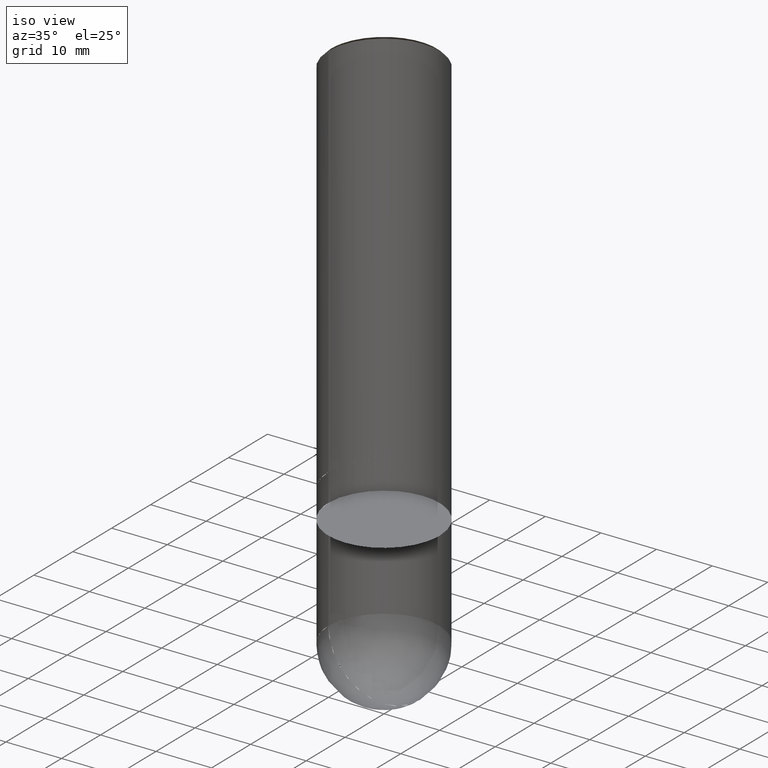
[diagram: clean part render]
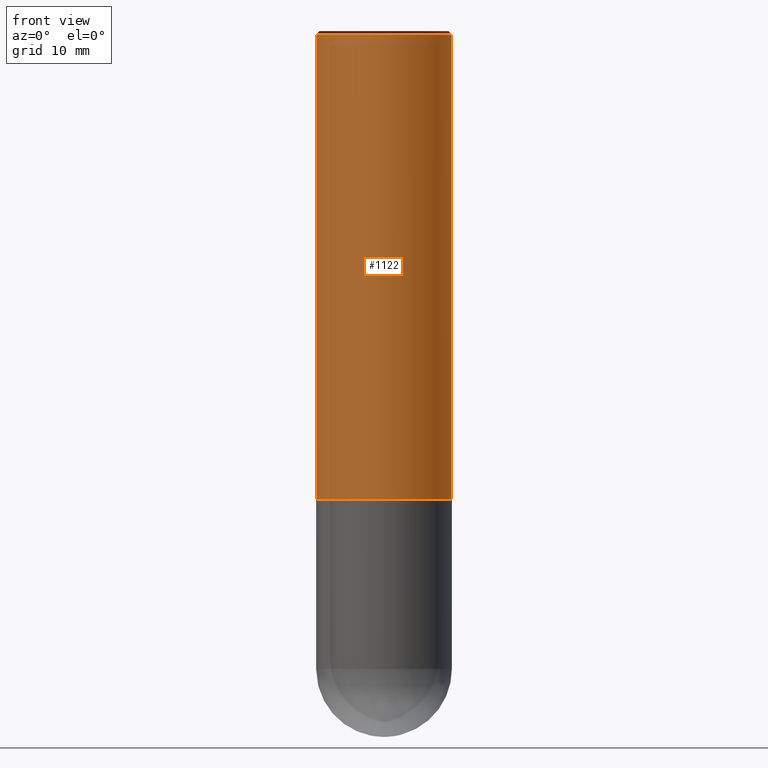
[diagram: tour spotlight — one face highlighted and labeled with its STEP entity id]
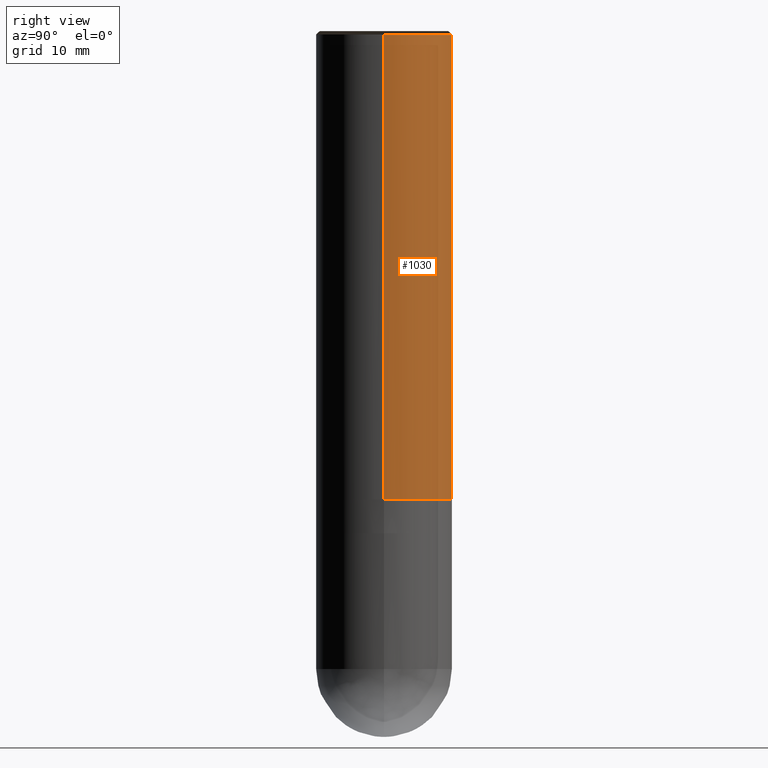
[diagram: tour spotlight — one face highlighted and labeled with its STEP entity id]
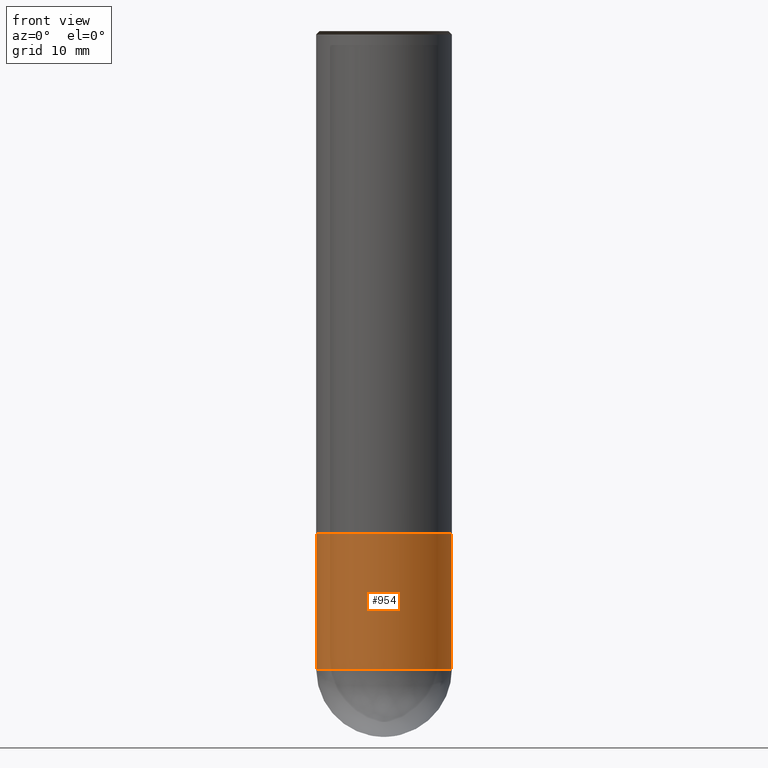
[diagram: tour spotlight — one face highlighted and labeled with its STEP entity id]
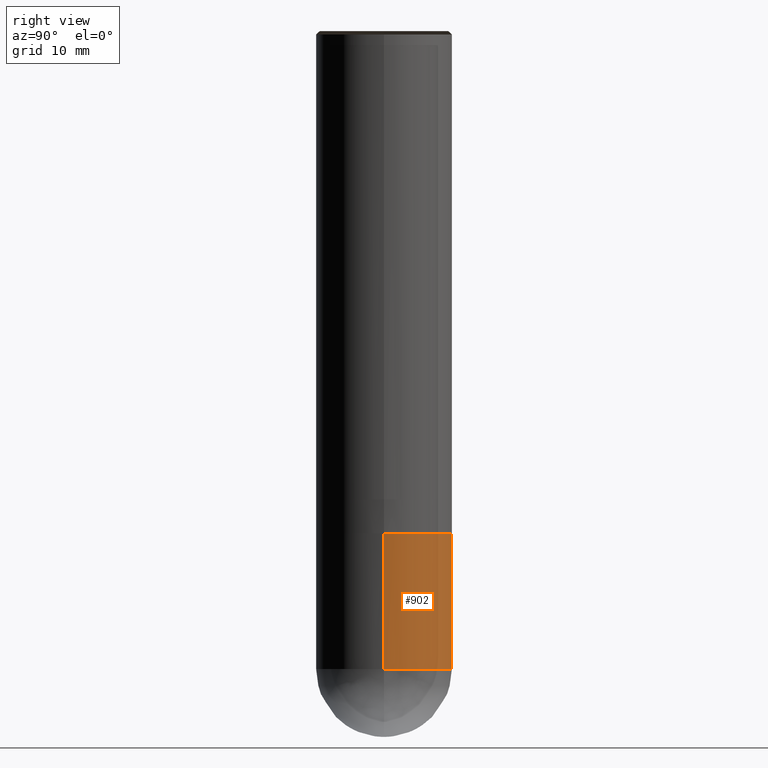
[diagram: tour spotlight — one face highlighted and labeled with its STEP entity id]
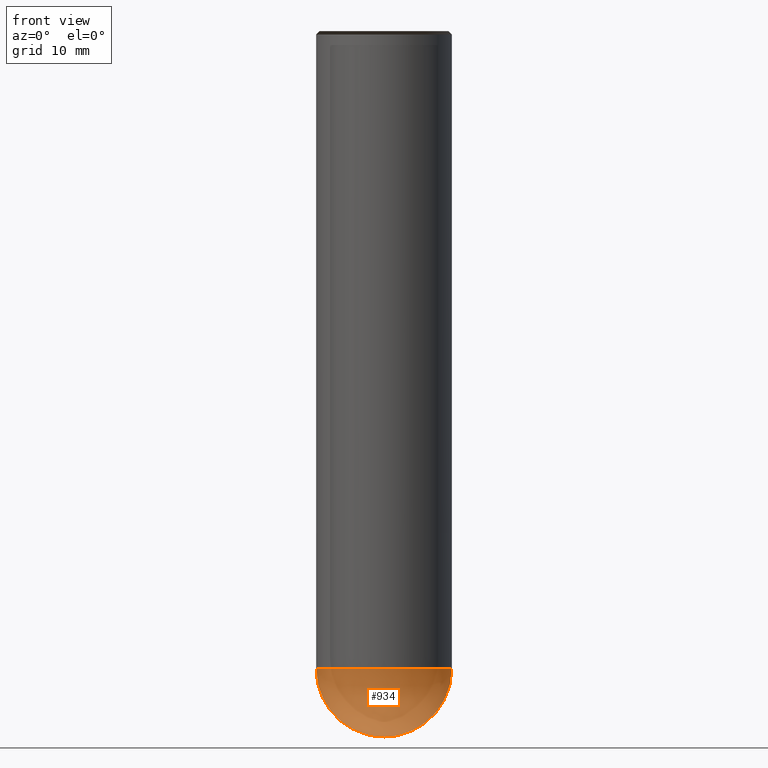
[diagram: tour spotlight — one face highlighted and labeled with its STEP entity id]
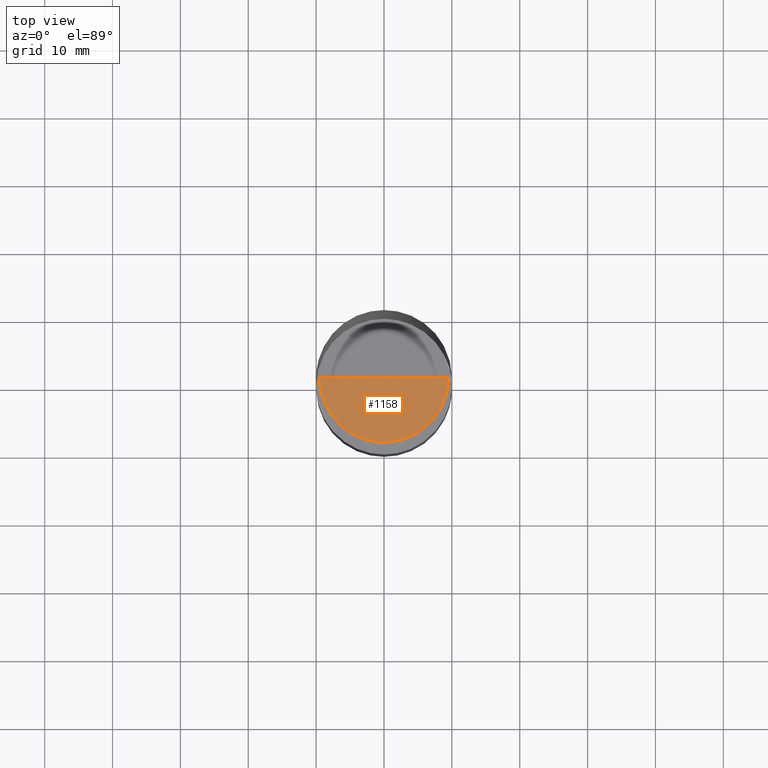
[diagram: tour spotlight — one face highlighted and labeled with its STEP entity id]
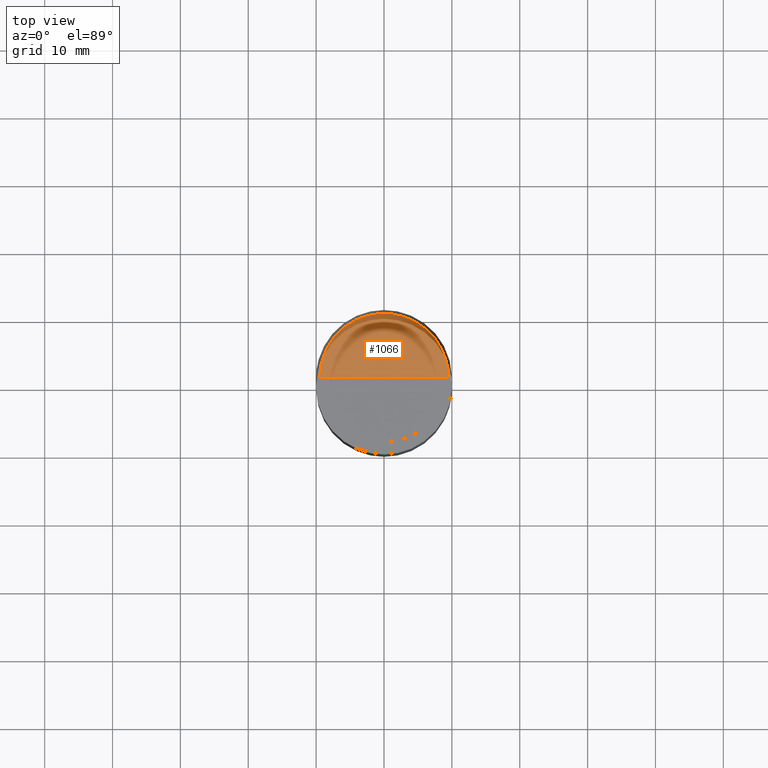
[diagram: tour spotlight — one face highlighted and labeled with its STEP entity id]
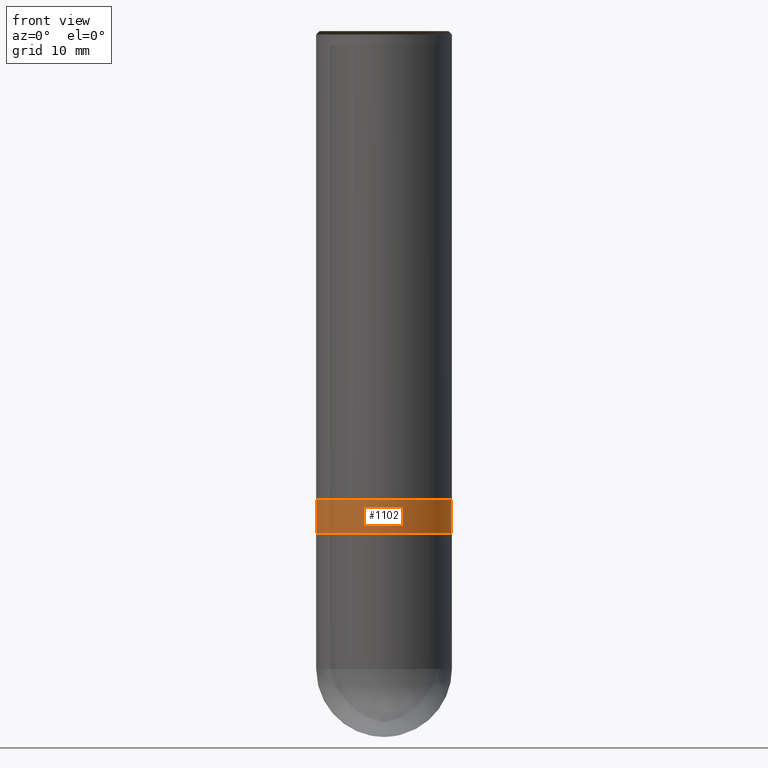
[diagram: tour spotlight — one face highlighted and labeled with its STEP entity id]
A machine part: a face-by-face anatomy tour. The part has 16 B-rep faces; the first image is the clean iso view, then the 8 largest visible faces are spotlighted one at a time (largest first), each with its STEP entity span.

Face 1 — front view, entity #1122. In plain terms, the highlighted face is a freeform B-spline surface patch.
Definition (entity closure, byte-faithful):
#836=CARTESIAN_POINT('',(10.0,0.0,0.0));
#840=CARTESIAN_POINT('',(-10.0,0.0,0.0));
#841=CARTESIAN_POINT('',(10.0,0.0,68.5));
#845=CARTESIAN_POINT('',(-10.0,0.0,68.5));
#852=CARTESIAN_POINT('',(-10.0,-10.0,0.0));
#853=CARTESIAN_POINT('',(0.0,-10.0,0.0));
#854=CARTESIAN_POINT('',(10.0,-10.0,0.0));
#855=CARTESIAN_POINT('',(-10.0,-10.0,68.5));
#856=CARTESIAN_POINT('',(0.0,-10.0,68.5));
#857=CARTESIAN_POINT('',(10.0,-10.0,68.5));
#1103=(
BOUNDED_SURFACE()
B_SPLINE_SURFACE(1,2,(
(#840,#852,#853,#854,#836),
(#845,#855,#856,#857,#841)
), .UNSPECIFIED.,.F.,.F.,.F.)
B_SPLINE_SURFACE_WITH_KNOTS((2,2),(3,2,3),(
0.0,1.0),(
0.0,0.5,1.0), .UNSPECIFIED.)
GEOMETRIC_REPRESENTATION_ITEM()
RATIONAL_B_SPLINE_SURFACE(((1.0,0.707106781187,1.0,0.707106781187,1.0),
(1.0,0.707106781187,1.0,0.707106781187,1.0)
))
REPRESENTATION_ITEM('')
SURFACE()
);
#1104=(
BOUNDED_CURVE()
B_SPLINE_CURVE(2,(#836,#854,#853,#852,#840),.UNSPECIFIED.,.F.,.F.)
B_SPLINE_CURVE_WITH_KNOTS((3,2,3),
(0.0,0.5,1.0),.UNSPECIFIED.)
CURVE()
GEOMETRIC_REPRESENTATION_ITEM()
RATIONAL_B_SPLINE_CURVE((1.0,0.707106781187,1.0,0.707106781187,1.0))
REPRESENTATION_ITEM('')
);
#1105=(
BOUNDED_CURVE()
B_SPLINE_CURVE(1,(#840,#845),.UNSPECIFIED.,.F.,.F.)
B_SPLINE_CURVE_WITH_KNOTS((2,2),
(0.0,1.0),.UNSPECIFIED.)
CURVE()
GEOMETRIC_REPRESENTATION_ITEM()
RATIONAL_B_SPLINE_CURVE((1.0,1.0))
REPRESENTATION_ITEM('')
);
#1106=(
BOUNDED_CURVE()
B_SPLINE_CURVE(2,(#845,#855,#856,#857,#841),.UNSPECIFIED.,.F.,.F.)
B_SPLINE_CURVE_WITH_KNOTS((3,2,3),
(0.0,0.5,1.0),.UNSPECIFIED.)
CURVE()
GEOMETRIC_REPRESENTATION_ITEM()
RATIONAL_B_SPLINE_CURVE((1.0,0.707106781187,1.0,0.707106781187,1.0))
REPRESENTATION_ITEM('')
);
#1107=(
BOUNDED_CURVE()
B_SPLINE_CURVE(1,(#841,#836),.UNSPECIFIED.,.F.,.F.)
B_SPLINE_CURVE_WITH_KNOTS((2,2),
(0.0,1.0),.UNSPECIFIED.)
CURVE()
GEOMETRIC_REPRESENTATION_ITEM()
RATIONAL_B_SPLINE_CURVE((1.0,1.0))
REPRESENTATION_ITEM('')
);
#1108=VERTEX_POINT('',#836);
#1109=VERTEX_POINT('',#840);
#1110=VERTEX_POINT('',#841);
#1111=VERTEX_POINT('',#845);
#1112=EDGE_CURVE('',#1108,#1109,#1104,.T.);
#1113=EDGE_CURVE('',#1109,#1111,#1105,.T.);
#1114=EDGE_CURVE('',#1111,#1110,#1106,.T.);
#1115=EDGE_CURVE('',#1110,#1108,#1107,.T.);
#1116=ORIENTED_EDGE('',*,*,#1112,.T.);
#1117=ORIENTED_EDGE('',*,*,#1113,.T.);
#1118=ORIENTED_EDGE('',*,*,#1114,.T.);
#1119=ORIENTED_EDGE('',*,*,#1115,.T.);
#1120=EDGE_LOOP('',(#1116,#1117,#1118,#1119));
#1121=FACE_OUTER_BOUND('',#1120,.T.);
#1122=ADVANCED_FACE('',(#1121),#1103,.T.);

Face 2 — right view, entity #1030. In plain terms, the highlighted face is a freeform B-spline surface patch.
Definition (entity closure, byte-faithful):
#836=CARTESIAN_POINT('',(10.0,0.0,0.0));
#837=CARTESIAN_POINT('',(10.0,10.0,0.0));
#838=CARTESIAN_POINT('',(0.0,10.0,0.0));
#839=CARTESIAN_POINT('',(-10.0,10.0,0.0));
#840=CARTESIAN_POINT('',(-10.0,0.0,0.0));
#841=CARTESIAN_POINT('',(10.0,0.0,68.5));
#842=CARTESIAN_POINT('',(10.0,10.0,68.5));
#843=CARTESIAN_POINT('',(0.0,10.0,68.5));
#844=CARTESIAN_POINT('',(-10.0,10.0,68.5));
#845=CARTESIAN_POINT('',(-10.0,0.0,68.5));
#1011=(
BOUNDED_SURFACE()
B_SPLINE_SURFACE(1,2,(
(#836,#837,#838,#839,#840),
(#841,#842,#843,#844,#845)
), .UNSPECIFIED.,.F.,.F.,.F.)
B_SPLINE_SURFACE_WITH_KNOTS((2,2),(3,2,3),(
0.0,1.0),(
0.0,0.5,1.0), .UNSPECIFIED.)
GEOMETRIC_REPRESENTATION_ITEM()
RATIONAL_B_SPLINE_SURFACE(((1.0,0.707106781187,1.0,0.707106781187,1.0),
(1.0,0.707106781187,1.0,0.707106781187,1.0)
))
REPRESENTATION_ITEM('')
SURFACE()
);
#1012=(
BOUNDED_CURVE()
B_SPLINE_CURVE(2,(#840,#839,#838,#837,#836),.UNSPECIFIED.,.F.,.F.)
B_SPLINE_CURVE_WITH_KNOTS((3,2,3),
(0.0,0.5,1.0),.UNSPECIFIED.)
CURVE()
GEOMETRIC_REPRESENTATION_ITEM()
RATIONAL_B_SPLINE_CURVE((1.0,0.707106781187,1.0,0.707106781187,1.0))
REPRESENTATION_ITEM('')
);
#1013=(
BOUNDED_CURVE()
B_SPLINE_CURVE(1,(#836,#841),.UNSPECIFIED.,.F.,.F.)
B_SPLINE_CURVE_WITH_KNOTS((2,2),
(0.0,1.0),.UNSPECIFIED.)
CURVE()
GEOMETRIC_REPRESENTATION_ITEM()
RATIONAL_B_SPLINE_CURVE((1.0,1.0))
REPRESENTATION_ITEM('')
);
#1014=(
BOUNDED_CURVE()
B_SPLINE_CURVE(2,(#841,#842,#843,#844,#845),.UNSPECIFIED.,.F.,.F.)
B_SPLINE_CURVE_WITH_KNOTS((3,2,3),
(0.0,0.5,1.0),.UNSPECIFIED.)
CURVE()
GEOMETRIC_REPRESENTATION_ITEM()
RATIONAL_B_SPLINE_CURVE((1.0,0.707106781187,1.0,0.707106781187,1.0))
REPRESENTATION_ITEM('')
);
#1015=(
BOUNDED_CURVE()
B_SPLINE_CURVE(1,(#845,#840),.UNSPECIFIED.,.F.,.F.)
B_SPLINE_CURVE_WITH_KNOTS((2,2),
(0.0,1.0),.UNSPECIFIED.)
CURVE()
GEOMETRIC_REPRESENTATION_ITEM()
RATIONAL_B_SPLINE_CURVE((1.0,1.0))
REPRESENTATION_ITEM('')
);
#1016=VERTEX_POINT('',#836);
#1017=VERTEX_POINT('',#840);
#1018=VERTEX_POINT('',#841);
#1019=VERTEX_POINT('',#845);
#1020=EDGE_CURVE('',#1017,#1016,#1012,.T.);
#1021=EDGE_CURVE('',#1016,#1018,#1013,.T.);
#1022=EDGE_CURVE('',#1018,#1019,#1014,.T.);
#1023=EDGE_CURVE('',#1019,#1017,#1015,.T.);
#1024=ORIENTED_EDGE('',*,*,#1020,.T.);
#1025=ORIENTED_EDGE('',*,*,#1021,.T.);
#1026=ORIENTED_EDGE('',*,*,#1022,.T.);
#1027=ORIENTED_EDGE('',*,*,#1023,.T.);
#1028=EDGE_LOOP('',(#1024,#1025,#1026,#1027));
#1029=FACE_OUTER_BOUND('',#1028,.T.);
#1030=ADVANCED_FACE('',(#1029),#1011,.T.);

Face 3 — front view, entity #954. In plain terms, the highlighted face is a freeform B-spline surface patch.
Definition (entity closure, byte-faithful):
#816=CARTESIAN_POINT('',(10.0,0.0,-25.0));
#820=CARTESIAN_POINT('',(-10.0,0.0,-25.0));
#821=CARTESIAN_POINT('',(10.0,0.0,-5.0));
#825=CARTESIAN_POINT('',(-10.0,0.0,-5.0));
#830=CARTESIAN_POINT('',(-10.0,-10.0,-25.0));
#831=CARTESIAN_POINT('',(0.0,-10.0,-25.0));
#832=CARTESIAN_POINT('',(10.0,-10.0,-25.0));
#833=CARTESIAN_POINT('',(-10.0,-10.0,-5.0));
#834=CARTESIAN_POINT('',(0.0,-10.0,-5.0));
#835=CARTESIAN_POINT('',(10.0,-10.0,-5.0));
#935=(
BOUNDED_SURFACE()
B_SPLINE_SURFACE(1,2,(
(#820,#830,#831,#832,#816),
(#825,#833,#834,#835,#821)
), .UNSPECIFIED.,.F.,.F.,.F.)
B_SPLINE_SURFACE_WITH_KNOTS((2,2),(3,2,3),(
0.0,1.0),(
0.0,0.5,1.0), .UNSPECIFIED.)
GEOMETRIC_REPRESENTATION_ITEM()
RATIONAL_B_SPLINE_SURFACE(((1.0,0.707106781187,1.0,0.707106781187,1.0),
(1.0,0.707106781187,1.0,0.707106781187,1.0)
))
REPRESENTATION_ITEM('')
SURFACE()
);
#936=(
BOUNDED_CURVE()
B_SPLINE_CURVE(2,(#816,#832,#831,#830,#820),.UNSPECIFIED.,.F.,.F.)
B_SPLINE_CURVE_WITH_KNOTS((3,2,3),
(0.0,0.5,1.0),.UNSPECIFIED.)
CURVE()
GEOMETRIC_REPRESENTATION_ITEM()
RATIONAL_B_SPLINE_CURVE((1.0,0.707106781187,1.0,0.707106781187,1.0))
REPRESENTATION_ITEM('')
);
#937=(
BOUNDED_CURVE()
B_SPLINE_CURVE(1,(#820,#825),.UNSPECIFIED.,.F.,.F.)
B_SPLINE_CURVE_WITH_KNOTS((2,2),
(0.0,1.0),.UNSPECIFIED.)
CURVE()
GEOMETRIC_REPRESENTATION_ITEM()
RATIONAL_B_SPLINE_CURVE((1.0,1.0))
REPRESENTATION_ITEM('')
);
#938=(
BOUNDED_CURVE()
B_SPLINE_CURVE(2,(#825,#833,#834,#835,#821),.UNSPECIFIED.,.F.,.F.)
B_SPLINE_CURVE_WITH_KNOTS((3,2,3),
(0.0,0.5,1.0),.UNSPECIFIED.)
CURVE()
GEOMETRIC_REPRESENTATION_ITEM()
RATIONAL_B_SPLINE_CURVE((1.0,0.707106781187,1.0,0.707106781187,1.0))
REPRESENTATION_ITEM('')
);
#939=(
BOUNDED_CURVE()
B_SPLINE_CURVE(1,(#821,#816),.UNSPECIFIED.,.F.,.F.)
B_SPLINE_CURVE_WITH_KNOTS((2,2),
(0.0,1.0),.UNSPECIFIED.)
CURVE()
GEOMETRIC_REPRESENTATION_ITEM()
RATIONAL_B_SPLINE_CURVE((1.0,1.0))
REPRESENTATION_ITEM('')
);
#940=VERTEX_POINT('',#816);
#941=VERTEX_POINT('',#820);
#942=VERTEX_POINT('',#821);
#943=VERTEX_POINT('',#825);
#944=EDGE_CURVE('',#940,#941,#936,.T.);
#945=EDGE_CURVE('',#941,#943,#937,.T.);
#946=EDGE_CURVE('',#943,#942,#938,.T.);
#947=EDGE_CURVE('',#942,#940,#939,.T.);
#948=ORIENTED_EDGE('',*,*,#944,.T.);
#949=ORIENTED_EDGE('',*,*,#945,.T.);
#950=ORIENTED_EDGE('',*,*,#946,.T.);
#951=ORIENTED_EDGE('',*,*,#947,.T.);
#952=EDGE_LOOP('',(#948,#949,#950,#951));
#953=FACE_OUTER_BOUND('',#952,.T.);
#954=ADVANCED_FACE('',(#953),#935,.T.);

Face 4 — right view, entity #902. In plain terms, the highlighted face is a freeform B-spline surface patch.
Definition (entity closure, byte-faithful):
#816=CARTESIAN_POINT('',(10.0,0.0,-25.0));
#817=CARTESIAN_POINT('',(10.0,10.0,-25.0));
#818=CARTESIAN_POINT('',(0.0,10.0,-25.0));
#819=CARTESIAN_POINT('',(-10.0,10.0,-25.0));
#820=CARTESIAN_POINT('',(-10.0,0.0,-25.0));
#821=CARTESIAN_POINT('',(10.0,0.0,-5.0));
#822=CARTESIAN_POINT('',(10.0,10.0,-5.0));
#823=CARTESIAN_POINT('',(0.0,10.0,-5.0));
#824=CARTESIAN_POINT('',(-10.0,10.0,-5.0));
#825=CARTESIAN_POINT('',(-10.0,0.0,-5.0));
#883=(
BOUNDED_SURFACE()
B_SPLINE_SURFACE(1,2,(
(#816,#817,#818,#819,#820),
(#821,#822,#823,#824,#825)
), .UNSPECIFIED.,.F.,.F.,.F.)
B_SPLINE_SURFACE_WITH_KNOTS((2,2),(3,2,3),(
0.0,1.0),(
0.0,0.5,1.0), .UNSPECIFIED.)
GEOMETRIC_REPRESENTATION_ITEM()
RATIONAL_B_SPLINE_SURFACE(((1.0,0.707106781187,1.0,0.707106781187,1.0),
(1.0,0.707106781187,1.0,0.707106781187,1.0)
))
REPRESENTATION_ITEM('')
SURFACE()
);
#884=(
BOUNDED_CURVE()
B_SPLINE_CURVE(2,(#820,#819,#818,#817,#816),.UNSPECIFIED.,.F.,.F.)
B_SPLINE_CURVE_WITH_KNOTS((3,2,3),
(0.0,0.5,1.0),.UNSPECIFIED.)
CURVE()
GEOMETRIC_REPRESENTATION_ITEM()
RATIONAL_B_SPLINE_CURVE((1.0,0.707106781187,1.0,0.707106781187,1.0))
REPRESENTATION_ITEM('')
);
#885=(
BOUNDED_CURVE()
B_SPLINE_CURVE(1,(#816,#821),.UNSPECIFIED.,.F.,.F.)
B_SPLINE_CURVE_WITH_KNOTS((2,2),
(0.0,1.0),.UNSPECIFIED.)
CURVE()
GEOMETRIC_REPRESENTATION_ITEM()
RATIONAL_B_SPLINE_CURVE((1.0,1.0))
REPRESENTATION_ITEM('')
);
#886=(
BOUNDED_CURVE()
B_SPLINE_CURVE(2,(#821,#822,#823,#824,#825),.UNSPECIFIED.,.F.,.F.)
B_SPLINE_CURVE_WITH_KNOTS((3,2,3),
(0.0,0.5,1.0),.UNSPECIFIED.)
CURVE()
GEOMETRIC_REPRESENTATION_ITEM()
RATIONAL_B_SPLINE_CURVE((1.0,0.707106781187,1.0,0.707106781187,1.0))
REPRESENTATION_ITEM('')
);
#887=(
BOUNDED_CURVE()
B_SPLINE_CURVE(1,(#825,#820),.UNSPECIFIED.,.F.,.F.)
B_SPLINE_CURVE_WITH_KNOTS((2,2),
(0.0,1.0),.UNSPECIFIED.)
CURVE()
GEOMETRIC_REPRESENTATION_ITEM()
RATIONAL_B_SPLINE_CURVE((1.0,1.0))
REPRESENTATION_ITEM('')
);
#888=VERTEX_POINT('',#816);
#889=VERTEX_POINT('',#820);
#890=VERTEX_POINT('',#821);
#891=VERTEX_POINT('',#825);
#892=EDGE_CURVE('',#889,#888,#884,.T.);
#893=EDGE_CURVE('',#888,#890,#885,.T.);
#894=EDGE_CURVE('',#890,#891,#886,.T.);
#895=EDGE_CURVE('',#891,#889,#887,.T.);
#896=ORIENTED_EDGE('',*,*,#892,.T.);
#897=ORIENTED_EDGE('',*,*,#893,.T.);
#898=ORIENTED_EDGE('',*,*,#894,.T.);
#899=ORIENTED_EDGE('',*,*,#895,.T.);
#900=EDGE_LOOP('',(#896,#897,#898,#899));
#901=FACE_OUTER_BOUND('',#900,.T.);
#902=ADVANCED_FACE('',(#901),#883,.T.);

Face 5 — front view, entity #934. In plain terms, the highlighted face is a freeform B-spline surface patch.
Definition (entity closure, byte-faithful):
#810=CARTESIAN_POINT('',(0.0,0.0,-35.0));
#811=CARTESIAN_POINT('',(10.0,0.0,-35.0));
#815=CARTESIAN_POINT('',(-10.0,0.0,-35.0));
#816=CARTESIAN_POINT('',(10.0,0.0,-25.0));
#820=CARTESIAN_POINT('',(-10.0,0.0,-25.0));
#827=CARTESIAN_POINT('',(-10.0,-10.0,-35.0));
#828=CARTESIAN_POINT('',(0.0,-10.0,-35.0));
#829=CARTESIAN_POINT('',(10.0,-10.0,-35.0));
#830=CARTESIAN_POINT('',(-10.0,-10.0,-25.0));
#831=CARTESIAN_POINT('',(0.0,-10.0,-25.0));
#832=CARTESIAN_POINT('',(10.0,-10.0,-25.0));
#919=(
BOUNDED_SURFACE()
B_SPLINE_SURFACE(2,2,(
(#810,#810,#810,#810,#810),
(#815,#827,#828,#829,#811),
(#820,#830,#831,#832,#816)
), .UNSPECIFIED.,.F.,.F.,.F.)
B_SPLINE_SURFACE_WITH_KNOTS((3,3),(3,2,3),(
0.0,1.0),(
0.0,0.5,1.0), .UNSPECIFIED.)
GEOMETRIC_REPRESENTATION_ITEM()
RATIONAL_B_SPLINE_SURFACE(((1.0,0.707106781187,1.0,0.707106781187,1.0),
(0.707106781187,0.5,0.707106781187,0.5,0.707106781187),
(1.0,0.707106781187,1.0,0.707106781187,1.0)
))
REPRESENTATION_ITEM('')
SURFACE()
);
#920=(
BOUNDED_CURVE()
B_SPLINE_CURVE(2,(#816,#811,#810),.UNSPECIFIED.,.F.,.F.)
B_SPLINE_CURVE_WITH_KNOTS((3,3),
(0.0,1.0),.UNSPECIFIED.)
CURVE()
GEOMETRIC_REPRESENTATION_ITEM()
RATIONAL_B_SPLINE_CURVE((1.0,0.707106781187,1.0))
REPRESENTATION_ITEM('')
);
#921=(
BOUNDED_CURVE()
B_SPLINE_CURVE(2,(#810,#815,#820),.UNSPECIFIED.,.F.,.F.)
B_SPLINE_CURVE_WITH_KNOTS((3,3),
(0.0,1.0),.UNSPECIFIED.)
CURVE()
GEOMETRIC_REPRESENTATION_ITEM()
RATIONAL_B_SPLINE_CURVE((1.0,0.707106781187,1.0))
REPRESENTATION_ITEM('')
);
#922=(
BOUNDED_CURVE()
B_SPLINE_CURVE(2,(#820,#830,#831,#832,#816),.UNSPECIFIED.,.F.,.F.)
B_SPLINE_CURVE_WITH_KNOTS((3,2,3),
(0.0,0.5,1.0),.UNSPECIFIED.)
CURVE()
GEOMETRIC_REPRESENTATION_ITEM()
RATIONAL_B_SPLINE_CURVE((1.0,0.707106781187,1.0,0.707106781187,1.0))
REPRESENTATION_ITEM('')
);
#923=VERTEX_POINT('',#810);
#924=VERTEX_POINT('',#816);
#925=VERTEX_POINT('',#820);
#926=EDGE_CURVE('',#924,#923,#920,.T.);
#927=EDGE_CURVE('',#923,#925,#921,.T.);
#928=EDGE_CURVE('',#925,#924,#922,.T.);
#929=ORIENTED_EDGE('',*,*,#926,.T.);
#930=ORIENTED_EDGE('',*,*,#927,.T.);
#931=ORIENTED_EDGE('',*,*,#928,.T.);
#932=EDGE_LOOP('',(#929,#930,#931));
#933=FACE_OUTER_BOUND('',#932,.T.);
#934=ADVANCED_FACE('',(#933),#919,.T.);

Face 6 — top view, entity #1158. In plain terms, the highlighted face is a freeform B-spline surface patch.
Definition (entity closure, byte-faithful):
#846=CARTESIAN_POINT('',(9.5,0.0,69.0));
#850=CARTESIAN_POINT('',(-9.5,0.0,69.0));
#851=CARTESIAN_POINT('',(0.0,0.0,69.0));
#858=CARTESIAN_POINT('',(-9.5,-9.5,69.0));
#859=CARTESIAN_POINT('',(0.0,-9.5,69.0));
#860=CARTESIAN_POINT('',(9.5,-9.5,69.0));
#1143=(
BOUNDED_SURFACE()
B_SPLINE_SURFACE(1,2,(
(#850,#858,#859,#860,#846),
(#851,#851,#851,#851,#851)
), .UNSPECIFIED.,.F.,.F.,.F.)
B_SPLINE_SURFACE_WITH_KNOTS((2,2),(3,2,3),(
0.0,1.0),(
0.0,0.5,1.0), .UNSPECIFIED.)
GEOMETRIC_REPRESENTATION_ITEM()
RATIONAL_B_SPLINE_SURFACE(((1.0,0.707106781187,1.0,0.707106781187,1.0),
(1.0,0.707106781187,1.0,0.707106781187,1.0)
))
REPRESENTATION_ITEM('')
SURFACE()
);
#1144=(
BOUNDED_CURVE()
B_SPLINE_CURVE(2,(#846,#860,#859,#858,#850),.UNSPECIFIED.,.F.,.F.)
B_SPLINE_CURVE_WITH_KNOTS((3,2,3),
(0.0,0.5,1.0),.UNSPECIFIED.)
CURVE()
GEOMETRIC_REPRESENTATION_ITEM()
RATIONAL_B_SPLINE_CURVE((1.0,0.707106781187,1.0,0.707106781187,1.0))
REPRESENTATION_ITEM('')
);
#1145=(
BOUNDED_CURVE()
B_SPLINE_CURVE(1,(#850,#851),.UNSPECIFIED.,.F.,.F.)
B_SPLINE_CURVE_WITH_KNOTS((2,2),
(0.0,1.0),.UNSPECIFIED.)
CURVE()
GEOMETRIC_REPRESENTATION_ITEM()
RATIONAL_B_SPLINE_CURVE((1.0,1.0))
REPRESENTATION_ITEM('')
);
#1146=(
BOUNDED_CURVE()
B_SPLINE_CURVE(1,(#851,#846),.UNSPECIFIED.,.F.,.F.)
B_SPLINE_CURVE_WITH_KNOTS((2,2),
(0.0,1.0),.UNSPECIFIED.)
CURVE()
GEOMETRIC_REPRESENTATION_ITEM()
RATIONAL_B_SPLINE_CURVE((1.0,1.0))
REPRESENTATION_ITEM('')
);
#1147=VERTEX_POINT('',#846);
#1148=VERTEX_POINT('',#850);
#1149=VERTEX_POINT('',#851);
#1150=EDGE_CURVE('',#1147,#1148,#1144,.T.);
#1151=EDGE_CURVE('',#1148,#1149,#1145,.T.);
#1152=EDGE_CURVE('',#1149,#1147,#1146,.T.);
#1153=ORIENTED_EDGE('',*,*,#1150,.T.);
#1154=ORIENTED_EDGE('',*,*,#1151,.T.);
#1155=ORIENTED_EDGE('',*,*,#1152,.T.);
#1156=EDGE_LOOP('',(#1153,#1154,#1155));
#1157=FACE_OUTER_BOUND('',#1156,.T.);
#1158=ADVANCED_FACE('',(#1157),#1143,.T.);

Face 7 — top view, entity #1066. In plain terms, the highlighted face is a freeform B-spline surface patch.
Definition (entity closure, byte-faithful):
#846=CARTESIAN_POINT('',(9.5,0.0,69.0));
#847=CARTESIAN_POINT('',(9.5,9.5,69.0));
#848=CARTESIAN_POINT('',(0.0,9.5,69.0));
#849=CARTESIAN_POINT('',(-9.5,9.5,69.0));
#850=CARTESIAN_POINT('',(-9.5,0.0,69.0));
#851=CARTESIAN_POINT('',(0.0,0.0,69.0));
#1051=(
BOUNDED_SURFACE()
B_SPLINE_SURFACE(1,2,(
(#846,#847,#848,#849,#850),
(#851,#851,#851,#851,#851)
), .UNSPECIFIED.,.F.,.F.,.F.)
B_SPLINE_SURFACE_WITH_KNOTS((2,2),(3,2,3),(
0.0,1.0),(
0.0,0.5,1.0), .UNSPECIFIED.)
GEOMETRIC_REPRESENTATION_ITEM()
RATIONAL_B_SPLINE_SURFACE(((1.0,0.707106781187,1.0,0.707106781187,1.0),
(1.0,0.707106781187,1.0,0.707106781187,1.0)
))
REPRESENTATION_ITEM('')
SURFACE()
);
#1052=(
BOUNDED_CURVE()
B_SPLINE_CURVE(2,(#850,#849,#848,#847,#846),.UNSPECIFIED.,.F.,.F.)
B_SPLINE_CURVE_WITH_KNOTS((3,2,3),
(0.0,0.5,1.0),.UNSPECIFIED.)
CURVE()
GEOMETRIC_REPRESENTATION_ITEM()
RATIONAL_B_SPLINE_CURVE((1.0,0.707106781187,1.0,0.707106781187,1.0))
REPRESENTATION_ITEM('')
);
#1053=(
BOUNDED_CURVE()
B_SPLINE_CURVE(1,(#846,#851),.UNSPECIFIED.,.F.,.F.)
B_SPLINE_CURVE_WITH_KNOTS((2,2),
(0.0,1.0),.UNSPECIFIED.)
CURVE()
GEOMETRIC_REPRESENTATION_ITEM()
RATIONAL_B_SPLINE_CURVE((1.0,1.0))
REPRESENTATION_ITEM('')
);
#1054=(
BOUNDED_CURVE()
B_SPLINE_CURVE(1,(#851,#850),.UNSPECIFIED.,.F.,.F.)
B_SPLINE_CURVE_WITH_KNOTS((2,2),
(0.0,1.0),.UNSPECIFIED.)
CURVE()
GEOMETRIC_REPRESENTATION_ITEM()
RATIONAL_B_SPLINE_CURVE((1.0,1.0))
REPRESENTATION_ITEM('')
);
#1055=VERTEX_POINT('',#846);
#1056=VERTEX_POINT('',#850);
#1057=VERTEX_POINT('',#851);
#1058=EDGE_CURVE('',#1056,#1055,#1052,.T.);
#1059=EDGE_CURVE('',#1055,#1057,#1053,.T.);
#1060=EDGE_CURVE('',#1057,#1056,#1054,.T.);
#1061=ORIENTED_EDGE('',*,*,#1058,.T.);
#1062=ORIENTED_EDGE('',*,*,#1059,.T.);
#1063=ORIENTED_EDGE('',*,*,#1060,.T.);
#1064=EDGE_LOOP('',(#1061,#1062,#1063));
#1065=FACE_OUTER_BOUND('',#1064,.T.);
#1066=ADVANCED_FACE('',(#1065),#1051,.T.);

Face 8 — front view, entity #1102. In plain terms, the highlighted face is a freeform B-spline surface patch.
Definition (entity closure, byte-faithful):
#821=CARTESIAN_POINT('',(10.0,0.0,-5.0));
#825=CARTESIAN_POINT('',(-10.0,0.0,-5.0));
#833=CARTESIAN_POINT('',(-10.0,-10.0,-5.0));
#834=CARTESIAN_POINT('',(0.0,-10.0,-5.0));
#835=CARTESIAN_POINT('',(10.0,-10.0,-5.0));
#836=CARTESIAN_POINT('',(10.0,0.0,0.0));
#840=CARTESIAN_POINT('',(-10.0,0.0,0.0));
#852=CARTESIAN_POINT('',(-10.0,-10.0,0.0));
#853=CARTESIAN_POINT('',(0.0,-10.0,0.0));
#854=CARTESIAN_POINT('',(10.0,-10.0,0.0));
#1083=(
BOUNDED_SURFACE()
B_SPLINE_SURFACE(1,2,(
(#825,#833,#834,#835,#821),
(#840,#852,#853,#854,#836)
), .UNSPECIFIED.,.F.,.F.,.F.)
B_SPLINE_SURFACE_WITH_KNOTS((2,2),(3,2,3),(
0.0,1.0),(
0.0,0.5,1.0), .UNSPECIFIED.)
GEOMETRIC_REPRESENTATION_ITEM()
RATIONAL_B_SPLINE_SURFACE(((1.0,0.707106781187,1.0,0.707106781187,1.0),
(1.0,0.707106781187,1.0,0.707106781187,1.0)
))
REPRESENTATION_ITEM('')
SURFACE()
);
#1084=(
BOUNDED_CURVE()
B_SPLINE_CURVE(2,(#821,#835,#834,#833,#825),.UNSPECIFIED.,.F.,.F.)
B_SPLINE_CURVE_WITH_KNOTS((3,2,3),
(0.0,0.5,1.0),.UNSPECIFIED.)
CURVE()
GEOMETRIC_REPRESENTATION_ITEM()
RATIONAL_B_SPLINE_CURVE((1.0,0.707106781187,1.0,0.707106781187,1.0))
REPRESENTATION_ITEM('')
);
#1085=(
BOUNDED_CURVE()
B_SPLINE_CURVE(1,(#825,#840),.UNSPECIFIED.,.F.,.F.)
B_SPLINE_CURVE_WITH_KNOTS((2,2),
(0.0,1.0),.UNSPECIFIED.)
CURVE()
GEOMETRIC_REPRESENTATION_ITEM()
RATIONAL_B_SPLINE_CURVE((1.0,1.0))
REPRESENTATION_ITEM('')
);
#1086=(
BOUNDED_CURVE()
B_SPLINE_CURVE(2,(#840,#852,#853,#854,#836),.UNSPECIFIED.,.F.,.F.)
B_SPLINE_CURVE_WITH_KNOTS((3,2,3),
(0.0,0.5,1.0),.UNSPECIFIED.)
CURVE()
GEOMETRIC_REPRESENTATION_ITEM()
RATIONAL_B_SPLINE_CURVE((1.0,0.707106781187,1.0,0.707106781187,1.0))
REPRESENTATION_ITEM('')
);
#1087=(
BOUNDED_CURVE()
B_SPLINE_CURVE(1,(#836,#821),.UNSPECIFIED.,.F.,.F.)
B_SPLINE_CURVE_WITH_KNOTS((2,2),
(0.0,1.0),.UNSPECIFIED.)
CURVE()
GEOMETRIC_REPRESENTATION_ITEM()
RATIONAL_B_SPLINE_CURVE((1.0,1.0))
REPRESENTATION_ITEM('')
);
#1088=VERTEX_POINT('',#821);
#1089=VERTEX_POINT('',#825);
#1090=VERTEX_POINT('',#836);
#1091=VERTEX_POINT('',#840);
#1092=EDGE_CURVE('',#1088,#1089,#1084,.T.);
#1093=EDGE_CURVE('',#1089,#1091,#1085,.T.);
#1094=EDGE_CURVE('',#1091,#1090,#1086,.T.);
#1095=EDGE_CURVE('',#1090,#1088,#1087,.T.);
#1096=ORIENTED_EDGE('',*,*,#1092,.T.);
#1097=ORIENTED_EDGE('',*,*,#1093,.T.);
#1098=ORIENTED_EDGE('',*,*,#1094,.T.);
#1099=ORIENTED_EDGE('',*,*,#1095,.T.);
#1100=EDGE_LOOP('',(#1096,#1097,#1098,#1099));
#1101=FACE_OUTER_BOUND('',#1100,.T.);
#1102=ADVANCED_FACE('',(#1101),#1083,.T.);